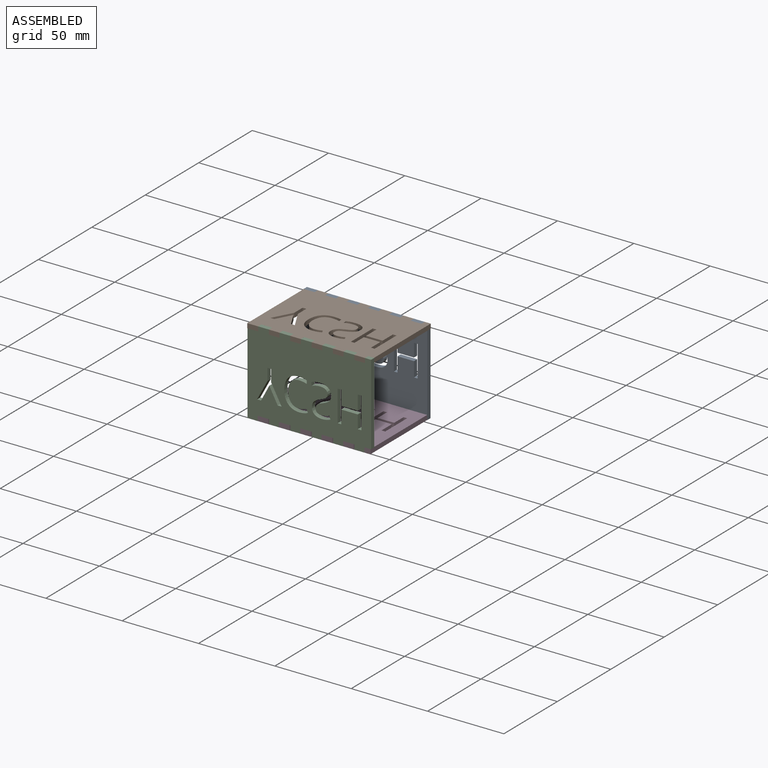
[diagram: assembled view]
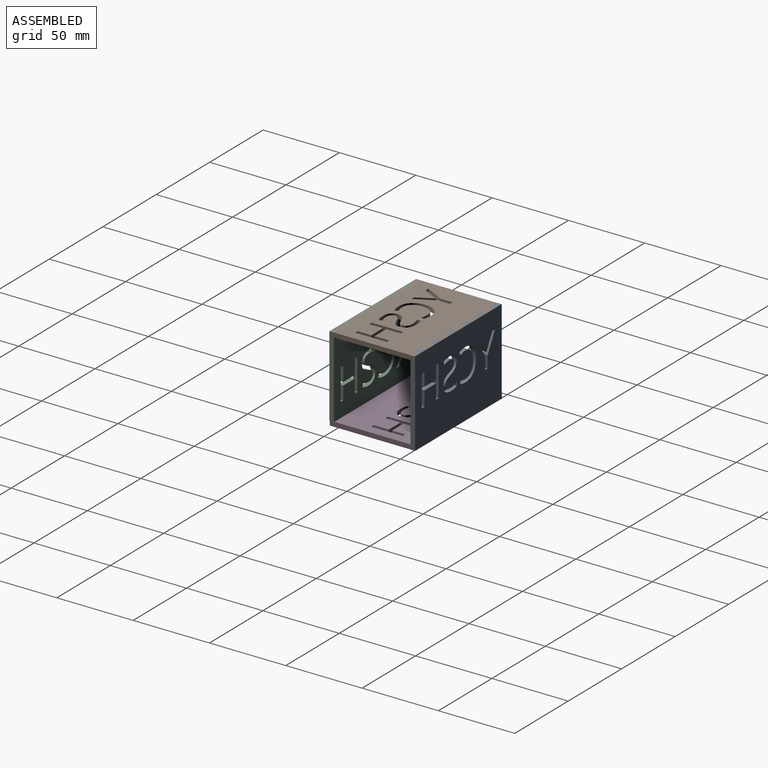
[diagram: assembled view, second angle]
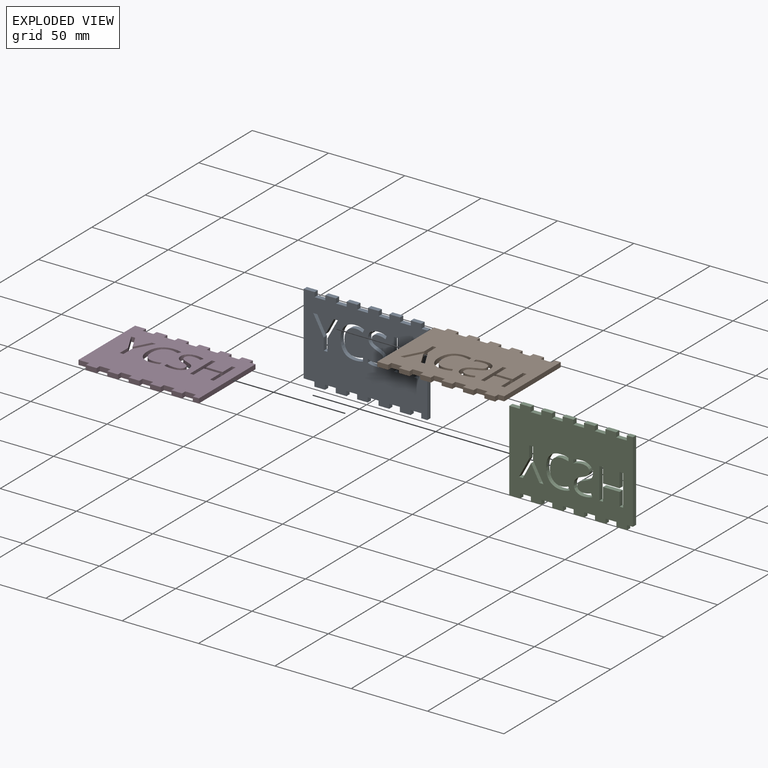
[diagram: exploded view]
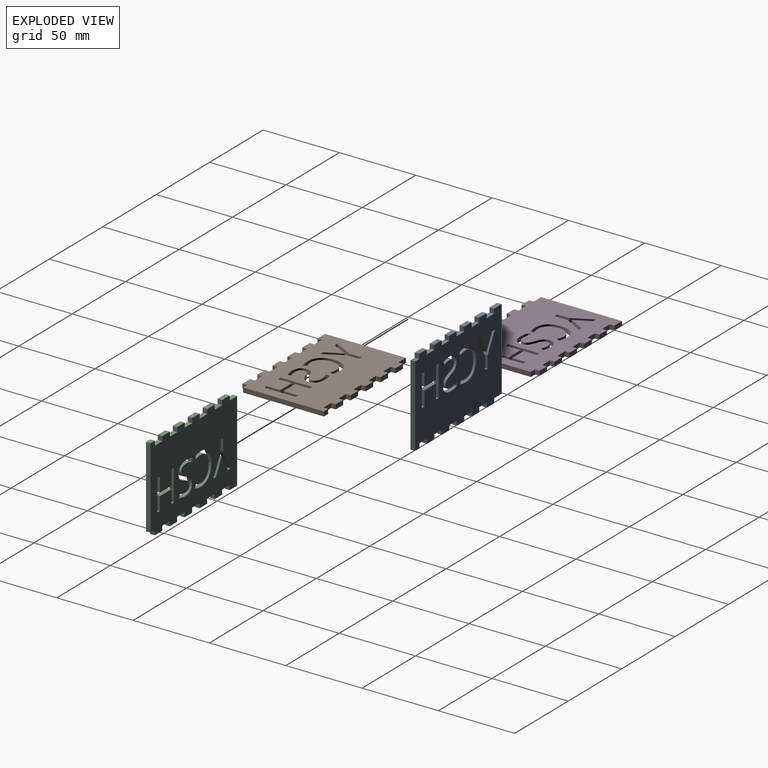
[diagram: exploded view, second angle]
ASSEMBLY  parts=4 mates=3
PART A: 111 faces, bbox 81x56x3 mm
  f0: plane 81x56mm, normal (0,0,1), area 3904mm2, adj f2,f3,f4,f5,f6,f7,f8,f9
  f1: plane 81x56mm, normal (0,0,-1), area 3904mm2, adj f2,f3,f4,f5,f6,f7,f8,f9
  f2: plane 7.14x3mm, normal (0,1,0), area 21.4mm2, adj f0,f1,f3,f49
  f3: plane 53x3mm, normal (-1,0,0), area 159mm2, adj f0,f1,f2,f4
  f4: plane 7x3mm, normal (0,-1,0), area 21mm2, adj f0,f1,f3,f5
  f5: plane 3x3mm, normal (-1,0,0), area 9mm2, adj f0,f1,f4,f6
  f6: plane 7x3mm, normal (0,-1,0), area 21mm2, adj f0,f1,f5,f7
  f7: plane 3x3mm, normal (1,0,0), area 9mm2, adj f0,f1,f6,f8
  f8: plane 7x3mm, normal (0,-1,0), area 21mm2, adj f0,f1,f7,f9
  f9: plane 3x3mm, normal (-1,0,0), area 9mm2, adj f0,f1,f8,f10
  f10: plane 7x3mm, normal (0,-1,0), area 21mm2, adj f0,f1,f9,f11
  f11: plane 3x3mm, normal (1,0,0), area 9mm2, adj f0,f1,f10,f12
  f12: plane 7x3mm, normal (0,-1,0), area 21mm2, adj f0,f1,f11,f13
  f13: plane 3x3mm, normal (-1,0,0), area 9mm2, adj f0,f1,f12,f14
  f14: plane 7x3mm, normal (0,-1,0), area 21mm2, adj f0,f1,f13,f15
  f15: plane 3x3mm, normal (1,0,0), area 9mm2, adj f0,f1,f14,f16
  f16: plane 7x3mm, normal (0,-1,0), area 21mm2, adj f0,f1,f15,f17
  f17: plane 3x3mm, normal (-1,0,0), area 9mm2, adj f0,f1,f16,f18
  f18: plane 7x3mm, normal (0,-1,0), area 21mm2, adj f0,f1,f17,f19
  f19: plane 3x3mm, normal (1,0,0), area 9mm2, adj f0,f1,f18,f20
  f20: plane 7x3mm, normal (0,-1,0), area 21mm2, adj f0,f1,f19,f21
  f21: plane 3x3mm, normal (-1,0,0), area 9mm2, adj f0,f1,f20,f22
  f22: plane 7x3mm, normal (0,-1,0), area 21mm2, adj f0,f1,f21,f23
  f23: plane 3x3mm, normal (1,0,0), area 9mm2, adj f0,f1,f22,f24
  f24: plane 7x3mm, normal (0,-1,0), area 21mm2, adj f0,f1,f23,f25
  f25: plane 3x3mm, normal (-1,0,0), area 9mm2, adj f0,f1,f24,f26
  f26: plane 4x3mm, normal (0,-1,0), area 12mm2, adj f0,f1,f25,f27
  f27: plane 53x3mm, normal (1,0,0), area 159mm2, adj f0,f1,f26,f28
  f28: plane 3.86x3mm, normal (0,1,0), area 11.6mm2, adj f0,f1,f27,f29
  f29: plane 3x3mm, normal (1,0,0), area 9mm2, adj f0,f1,f28,f30
  f30: plane 7x3mm, normal (0,1,0), area 21mm2, adj f0,f1,f29,f31
  f31: plane 3x3mm, normal (-1,0,0), area 9mm2, adj f0,f1,f30,f32
  f32: plane 7x3mm, normal (0,1,0), area 21mm2, adj f0,f1,f31,f33
  f33: plane 3x3mm, normal (1,0,0), area 9mm2, adj f0,f1,f32,f34
  f34: plane 7x3mm, normal (0,1,0), area 21mm2, adj f0,f1,f33,f35
  f35: plane 3x3mm, normal (-1,0,0), area 9mm2, adj f0,f1,f34,f36
  f36: plane 7x3mm, normal (0,1,0), area 21mm2, adj f0,f1,f35,f37
  f37: plane 3x3mm, normal (1,0,0), area 9mm2, adj f0,f1,f36,f38
  f38: plane 7x3mm, normal (0,1,0), area 21mm2, adj f0,f1,f37,f39
  f39: plane 3x3mm, normal (-1,0,0), area 9mm2, adj f0,f1,f38,f40
  f40: plane 7x3mm, normal (0,1,0), area 21mm2, adj f0,f1,f39,f41
  f41: plane 3x3mm, normal (1,0,0), area 9mm2, adj f0,f1,f40,f42
  f42: plane 7x3mm, normal (0,1,0), area 21mm2, adj f0,f1,f41,f43
  f43: plane 3x3mm, normal (-1,0,0), area 9mm2, adj f0,f1,f42,f44
  f44: plane 7x3mm, normal (0,1,0), area 21mm2, adj f0,f1,f43,f45
  f45: plane 3x3mm, normal (1,0,0), area 9mm2, adj f0,f1,f44,f46
  f46: plane 7x3mm, normal (0,1,0), area 21mm2, adj f0,f1,f45,f47
  f47: plane 3x3mm, normal (-1,0,0), area 9mm2, adj f0,f1,f46,f48
  f48: plane 7x3mm, normal (0,1,0), area 21mm2, adj f0,f1,f47,f49
  f49: plane 3x3mm, normal (1,0,0), area 9mm2, adj f0,f1,f2,f48
  f50: extruded ~4.22x3mm, area 14.5mm2, adj f0,f1,f51,f74
  f51: extruded ~3.42x3mm, area 11.1mm2, adj f0,f1,f50,f52
  f52: extruded ~4.44x3mm, area 15.4mm2, adj f0,f1,f51,f53
  f53: extruded ~3x2.85mm, area 9.4mm2, adj f0,f1,f52,f54
  f54: extruded ~3x1.33mm, area 5.5mm2, adj f0,f1,f53,f55
  f55: extruded ~3x1.75mm, area 5.4mm2, adj f0,f1,f54,f56
  f56: extruded ~3x2.26mm, area 7.8mm2, adj f0,f1,f55,f57
  f57: extruded ~3x2.96mm, area 9.4mm2, adj f0,f1,f56,f58
  f58: extruded ~4.93x3mm, area 15.2mm2, adj f0,f1,f57,f59
  f59: plane 3x2.07mm, normal (-0.94,0.34,0), area 6.6mm2, adj f0,f1,f58,f60
  f60: extruded ~5.62x3mm, area 17.3mm2, adj f0,f1,f59,f61
  f61: extruded ~4.71x3mm, area 15mm2, adj f0,f1,f60,f62
  f62: extruded ~3.77x3mm, area 13mm2, adj f0,f1,f61,f63
  f63: extruded ~3.66x3mm, area 11.8mm2, adj f0,f1,f62,f64
  f64: extruded ~4.08x3mm, area 14.4mm2, adj f0,f1,f63,f65
  f65: extruded ~3.05x3mm, area 10mm2, adj f0,f1,f64,f66
  f66: extruded ~3x1.43mm, area 5.8mm2, adj f0,f1,f65,f67
  f67: extruded ~3x1.74mm, area 5.5mm2, adj f0,f1,f66,f68
  f68: extruded ~3x2.52mm, area 8.7mm2, adj f0,f1,f67,f69
  f69: extruded ~3.59x3mm, area 11.3mm2, adj f0,f1,f68,f70
  f70: extruded ~3x2.94mm, area 8.9mm2, adj f0,f1,f69,f71
  f71: extruded ~3x2.75mm, area 8.6mm2, adj f0,f1,f70,f72
  f72: plane 3x2.3mm, normal (1,0,0), area 6.9mm2, adj f0,f1,f71,f73
  f73: extruded ~5.61x3mm, area 17.2mm2, adj f0,f1,f72,f74
  f74: extruded ~5.33x3mm, area 16.9mm2, adj f0,f1,f50,f73
  f75: extruded ~5.33x3mm, area 17.9mm2, adj f0,f1,f76,f89
  f76: extruded ~4.66x3mm, area 14.5mm2, adj f0,f1,f75,f77
  f77: plane 3x2.05mm, normal (-0.9,0.44,0), area 6.8mm2, adj f0,f1,f76,f78
  f78: extruded ~5.63x3mm, area 17.4mm2, adj f0,f1,f77,f79
  f79: extruded ~5.26x3mm, area 16.4mm2, adj f0,f1,f78,f80
  f80: extruded ~3.67x3.42mm, area 15.3mm2, adj f0,f1,f79,f81
  f81: extruded ~5.55x3mm, area 17.2mm2, adj f0,f1,f80,f82
  f82: extruded ~7.81x3mm, area 25.1mm2, adj f0,f1,f81,f83
  f83: extruded ~6.99x3mm, area 23.2mm2, adj f0,f1,f82,f84
  f84: extruded ~5.26x3mm, area 16mm2, adj f0,f1,f83,f85
  f85: plane 3x2.09mm, normal (-1,0,0), area 6.3mm2, adj f0,f1,f84,f86
  f86: extruded ~4.89x3mm, area 14.9mm2, adj f0,f1,f85,f87
  f87: extruded ~5.38x3mm, area 18mm2, adj f0,f1,f86,f88
  f88: extruded ~6.22x3mm, area 19.9mm2, adj f0,f1,f87,f89
  f89: extruded ~6.16x3mm, area 19.8mm2, adj f0,f1,f75,f88
  f90: plane 10.25x5.46mm, normal (0.88,-0.47,0), area 34.8mm2, adj f0,f1,f91,f98
  f91: plane 10.25x5.43mm, normal (-0.88,-0.47,0), area 34.8mm2, adj f0,f1,f90,f92
  f92: plane 3x2.61mm, normal (0,-1,0), area 7.8mm2, adj f0,f1,f91,f93
  f93: plane 12.66x6.83mm, normal (0.88,0.47,0), area 43.1mm2, adj f0,f1,f92,f94
  f94: plane 7.84x3mm, normal (1,0,0), area 23.5mm2, adj f0,f1,f93,f95
  f95: plane 3x2.41mm, normal (0,1,0), area 7.2mm2, adj f0,f1,f94,f96
  f96: plane 7.95x3mm, normal (-1,0,0), area 23.8mm2, adj f0,f1,f95,f97
  f97: plane 12.55x6.84mm, normal (-0.88,0.48,0), area 42.9mm2, adj f0,f1,f96,f98
  f98: plane 3x2.58mm, normal (0,-1,0), area 7.7mm2, adj f0,f1,f90,f97
  f99: plane 3x2.38mm, normal (0,1,0), area 7.1mm2, adj f0,f1,f100,f110
  f100: plane 20.5x3mm, normal (-1,0,0), area 61.5mm2, adj f0,f1,f99,f101
  f101: plane 3x2.38mm, normal (0,-1,0), area 7.1mm2, adj f0,f1,f100,f102
  f102: plane 8.72x3mm, normal (1,0,0), area 26.2mm2, adj f0,f1,f101,f103
  f103: plane 10.8x3mm, normal (0,-1,0), area 32.4mm2, adj f0,f1,f102,f104
  f104: plane 8.72x3mm, normal (-1,0,0), area 26.2mm2, adj f0,f1,f103,f105
  f105: plane 3x2.38mm, normal (0,-1,0), area 7.1mm2, adj f0,f1,f104,f106
  f106: plane 20.5x3mm, normal (1,0,0), area 61.5mm2, adj f0,f1,f105,f107
  f107: plane 3x2.38mm, normal (0,1,0), area 7.1mm2, adj f0,f1,f106,f108
  f108: plane 9.64x3mm, normal (-1,0,0), area 28.9mm2, adj f0,f1,f107,f109
  f109: plane 10.8x3mm, normal (0,1,0), area 32.4mm2, adj f0,f1,f108,f110
  f110: plane 9.64x3mm, normal (1,0,0), area 28.9mm2, adj f0,f1,f99,f109
PART B: same geometry as A
PART C: same geometry as A
PART D: same geometry as A
PLACE A rot(axis=(1,0,0),90deg) t=(-0.48,52.7,-22.44)mm
PLACE B rot(axis=(1,0,0),180deg) t=(-0.34,24.7,5.56)mm
PLACE C rot(axis=(-1,0,0),90deg) t=(-0.2,-3.3,-22.44)mm
PLACE D rot(axis=(0.12,0.24,-0.96),0deg) t=(-0.61,24.7,-50.44)mm
MATE fastened B.f29 <-> C.f25  axis (1,0,0) through (36.3,-1.8,4.06)mm
MATE fastened A.f29 <-> B.f25  axis (1,0,0) through (36.16,51.2,4.06)mm
MATE fastened D.f49 <-> A.f5  axis (1,0,0) through (-33.98,51.2,-48.94)mm
